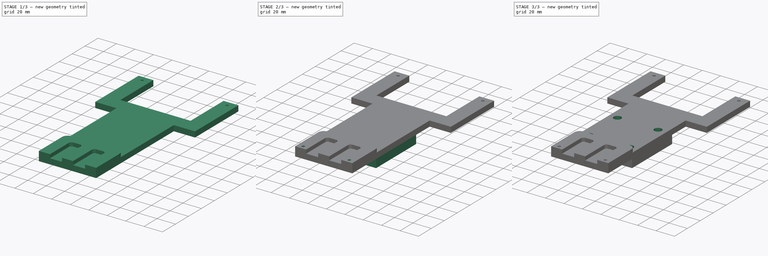
[diagram: build sequence overview — one tinted view per stage of 3, left to right]
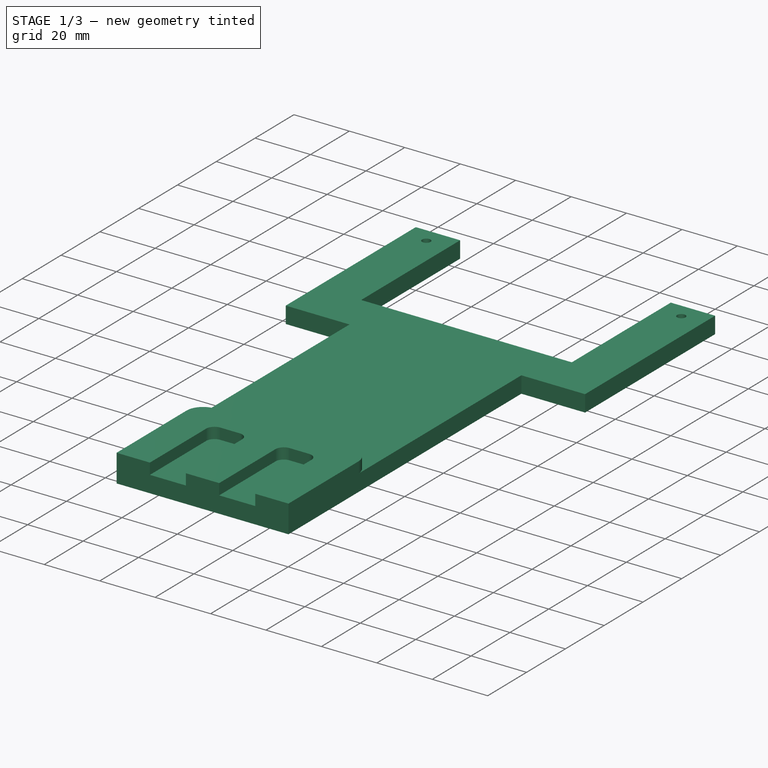
[diagram: stage 1 of 3 — iso view after this stage's code; geometry added in this stage tinted green]
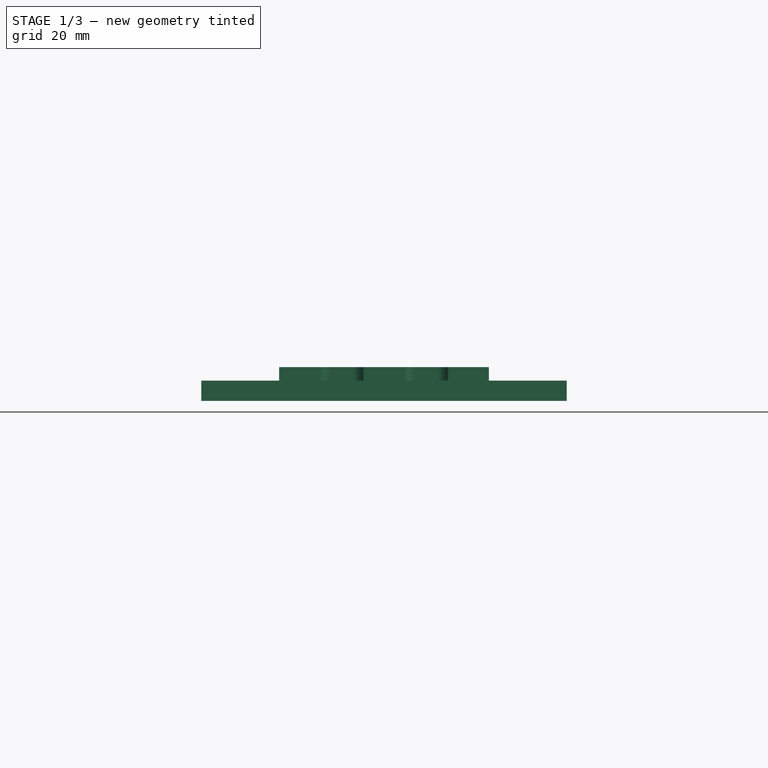
[diagram: stage 1 of 3 — front view after this stage's code; geometry added in this stage tinted green]
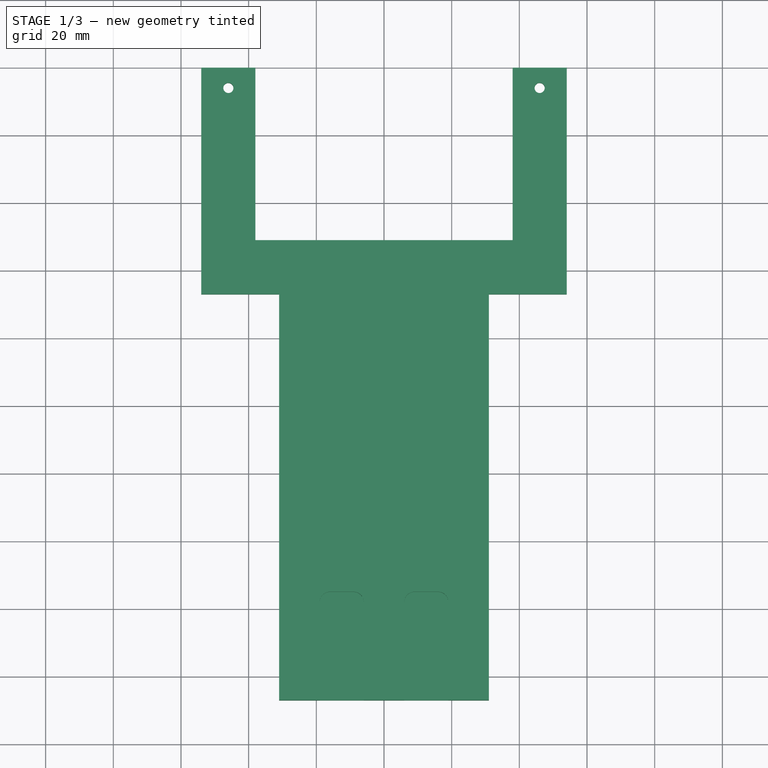
[diagram: stage 1 of 3 — top view after this stage's code; geometry added in this stage tinted green]
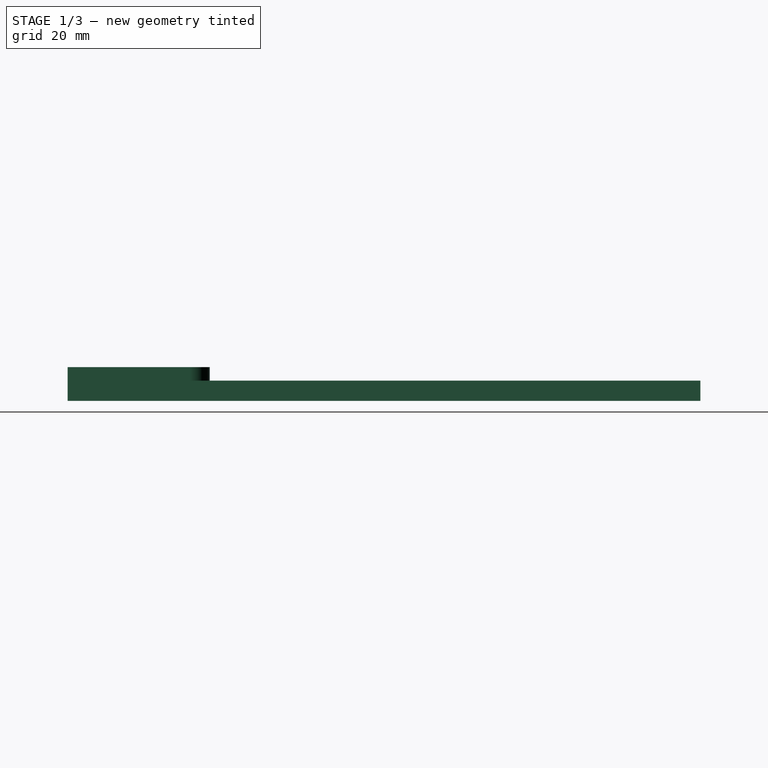
[diagram: stage 1 of 3 — right view after this stage's code; geometry added in this stage tinted green]
FCSTD DOCUMENT  (FreeCAD 0.19R24291 (Git))
Label: NUC
License: All rights reserved
LicenseURL: http://en.wikipedia.org/wiki/All_rights_reserved
objects: Sketcher::SketchObject×6, PartDesign::Pad×3, PartDesign::Pocket×3, PartDesign::Body×1
note: 19 computed .brp shape members not serialized (recipe doc carries the construction recipe); baked Part::Feature solids carry a one-line shape summary decoded from their .brp

FEATURE [Sketcher::SketchObject] Sketch
  FullyConstrained = true
  MapMode = 5
  Support = -> [XY_Plane]
  sketch-geometry (14):
    g0: LineSegment StartX=-38 StartY=29 StartZ=0 EndX=38 EndY=29 EndZ=0
    g1: LineSegment StartX=31 StartY=-107 StartZ=0 EndX=-31 EndY=-107 EndZ=0
    g2: LineSegment StartX=31 StartY=-107 StartZ=0 EndX=31 EndY=13 EndZ=0
    g3: LineSegment StartX=38 StartY=80 StartZ=0 EndX=54 EndY=80 EndZ=0
    g4: LineSegment StartX=-31 StartY=-107 StartZ=0 EndX=-31 EndY=13 EndZ=0
    g5: LineSegment StartX=-38 StartY=80 StartZ=0 EndX=-54 EndY=80 EndZ=0
    g6: Circle CenterX=46 CenterY=74 CenterZ=0 NormalX=0 NormalY=0 NormalZ=1 AngleXU=0 Radius=1.5
    g7: Circle CenterX=-46 CenterY=74 CenterZ=0 NormalX=0 NormalY=0 NormalZ=1 AngleXU=0 Radius=1.5
    g8: LineSegment StartX=-54 StartY=80 StartZ=0 EndX=-54 EndY=13 EndZ=0
    g9: LineSegment StartX=-54 StartY=13 StartZ=0 EndX=-31 EndY=13 EndZ=0
    g10: LineSegment StartX=54 StartY=80 StartZ=0 EndX=54 EndY=13 EndZ=0
    g11: LineSegment StartX=54 StartY=13 StartZ=0 EndX=31 EndY=13 EndZ=0
    g12: LineSegment StartX=38 StartY=80 StartZ=0 EndX=38 EndY=29 EndZ=0
    g13: LineSegment StartX=-38 StartY=80 StartZ=0 EndX=-38 EndY=29 EndZ=0
  constraints (42):
    c: Horizontal(g1)
    c: Coincident(g2,g1)
    c: Vertical(g2)
    c: Horizontal(g3)
    c: Coincident(g4,g1)
    c: Vertical(g4)
    c: Horizontal(g5)
    c: Horizontal(g5,g3)
    c: Horizontal(g2,g4)
    c: Equal(g3,g5)
    c: DistanceY(g1,g3) = 187
    c: Diameter(g6) = 3
    c: Equal(g7,g6)
    c: Horizontal(g7,g6)
    c: DistanceX(g7,g6) = 92
    c: DistanceY(g6,g3) = 6
    c: DistanceX(g3,g6) = 8
    c: DistanceX(g3,g3) = 16
    c: DistanceY(g2,g2) = 120
    c: DistanceX(g1,g1) = 62
    c: DistanceX(g5,g3) = 76
    c: Coincident(g8,g5)
    c: Vertical(g8)
    c: Coincident(g9,g8)
    c: Coincident(g9,g4)
    c: Coincident(g10,g3)
    c: Vertical(g10)
    c: Coincident(g11,g10)
    c: Coincident(g11,g2)
    c: Coincident(g12,g3)
    c: Vertical(g12)
    c: Coincident(g13,g5)
    c: Vertical(g13)
    c: DistanceY(g2,g0) = 16
    c: Horizontal(g11)
    c: Horizontal(g9)
    c: Coincident(g13,g0)
    c: Coincident(g0,g12)
    c: Horizontal(g0)
    c: DistanceY(g1,g-1) = 107
    c: DistanceX(g0,g-1) = 38
    c: DistanceX(g4,g-1) = 31
FEATURE [PartDesign::Pad] Pad
  Direction = (1,1,1)
  Length = 6
  Length2 = 100
  Profile = -> Sketch
  Type = 0
FEATURE [Sketcher::SketchObject] Sketch001
  FullyConstrained = true
  MapMode = 5
  Placement = pos=(0,0,6) rot=(0,0,1;0rad)
  Support = -> [Pad]
  sketch-geometry (18):
    g0: LineSegment StartX=31 StartY=-71 StartZ=0 EndX=31 EndY=-107 EndZ=0
    g1: LineSegment StartX=-31 StartY=-107 StartZ=0 EndX=-31 EndY=-71 EndZ=0
    g2: ArcOfCircle CenterX=-25 CenterY=-71 CenterZ=0 NormalX=0 NormalY=0 NormalZ=1 AngleXU=0 Radius=6 StartAngle=1.5708 EndAngle=3.14159
    g3: ArcOfCircle CenterX=25 CenterY=-71 CenterZ=0 NormalX=0 NormalY=0 NormalZ=1 AngleXU=0 Radius=6 StartAngle=6.28319 EndAngle=7.85398
    g4: LineSegment StartX=-25 StartY=-65 StartZ=0 EndX=25 EndY=-65 EndZ=0
    g5: LineSegment StartX=-31 StartY=-107 StartZ=0 EndX=-19 EndY=-107 EndZ=0
    g6: LineSegment StartX=-19 StartY=-107 StartZ=0 EndX=-19 EndY=-78 EndZ=0
    g7: LineSegment StartX=-16 StartY=-75 StartZ=0 EndX=-9 EndY=-75 EndZ=0
    g8: LineSegment StartX=-6 StartY=-78 StartZ=0 EndX=-6 EndY=-107 EndZ=0
    g9: LineSegment StartX=-6 StartY=-107 StartZ=0 EndX=6 EndY=-107 EndZ=0
    g10: LineSegment StartX=6 StartY=-107 StartZ=0 EndX=6 EndY=-78 EndZ=0
    g11: LineSegment StartX=9 StartY=-75 StartZ=0 EndX=16 EndY=-75 EndZ=0
    g12: LineSegment StartX=19 StartY=-78 StartZ=0 EndX=19 EndY=-107 EndZ=0
    g13: LineSegment StartX=19 StartY=-107 StartZ=0 EndX=31 EndY=-107 EndZ=0
    g14: ArcOfCircle CenterX=9 CenterY=-78 CenterZ=0 NormalX=0 NormalY=0 NormalZ=1 AngleXU=0 Radius=3 StartAngle=1.5708 EndAngle=3.14159
    g15: ArcOfCircle CenterX=16 CenterY=-78 CenterZ=0 NormalX=0 NormalY=0 NormalZ=1 AngleXU=0 Radius=3 StartAngle=1.85151e-07 EndAngle=1.5708
    g16: ArcOfCircle CenterX=-16 CenterY=-78 CenterZ=0 NormalX=0 NormalY=0 NormalZ=1 AngleXU=0 Radius=3 StartAngle=1.5708 EndAngle=3.14159
    g17: ArcOfCircle CenterX=-9 CenterY=-78 CenterZ=0 NormalX=0 NormalY=0 NormalZ=1 AngleXU=0 Radius=3 StartAngle=6.28318 EndAngle=7.85398
  constraints (60):
    c: Vertical(g0)
    c: Vertical(g1)
    c: DistanceY(g1,g-1) = 107
    c: DistanceX(g1,g-1) = 31
    c: DistanceX(g1,g0) = 62
    c: Coincident(g2,g1)
    c: Coincident(g3,g0)
    c: Coincident(g4,g2)
    c: Coincident(g4,g3)
    c: Horizontal(g4)
    c: Tangent(g1,g2)
    c: Tangent(g2,g4)
    c: Tangent(g4,g3)
    c: Tangent(g3,g0)
    c: DistanceY(g1,g2) = 42
    c: Equal(g3,g2)
    c: Coincident(g5,g1)
    c: Horizontal(g5)
    c: Coincident(g6,g5)
    c: Vertical(g6)
    c: Horizontal(g7)
    c: Vertical(g8)
    c: Coincident(g9,g8)
    c: Horizontal(g9)
    c: Coincident(g10,g9)
    c: Vertical(g10)
    c: Vertical(g12)
    c: Coincident(g13,g12)
    c: Coincident(g13,g0)
    c: Horizontal(g13)
    c: Horizontal(g11)
    c: Coincident(g14,g10)
    c: Coincident(g14,g11)
    c: Coincident(g15,g11)
    c: Coincident(g15,g12)
    c: Coincident(g16,g6)
    c: Coincident(g16,g7)
    c: Coincident(g17,g7)
    c: Coincident(g17,g8)
    c: Tangent(g6,g16)
    c: Tangent(g16,g7)
    c: Tangent(g7,g17)
    c: Tangent(g17,g8)
    c: Tangent(g10,g14)
    c: Tangent(g14,g11)
    c: Tangent(g11,g15)
    c: Tangent(g15,g12)
    c: Equal(g16,g17)
    c: Equal(g16,g14)
    c: Equal(g16,g15)
    c: Equal(g8,g6)
    c: Equal(g6,g10)
    c: Equal(g11,g7)
    c: Equal(g5,g13)
    c: Radius(g2) = 6
    c: Radius(g16) = 3
    c: DistanceX(g5,g8) = 13
    c: DistanceX(g5,g5) = 12
    c: DistanceY(g8,g7) = 32
    c: Equal(g1,g0)
FEATURE [PartDesign::Pad] Pad001
  BaseFeature = -> Pad
  Direction = (1,1,1)
  Length = 4
  Length2 = 100
  Profile = -> Sketch001
  Type = 0
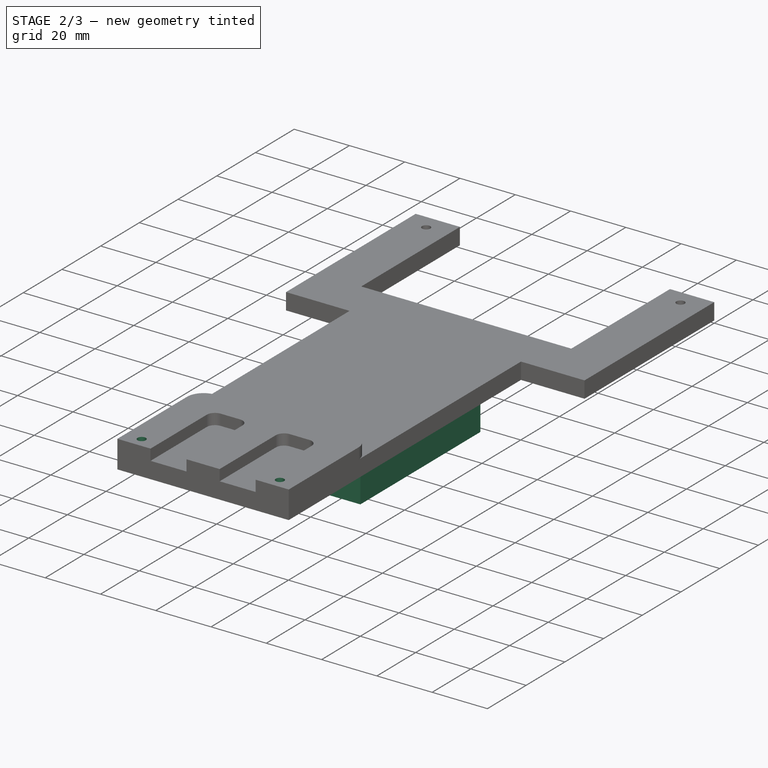
[diagram: stage 2 of 3 — iso view after this stage's code; geometry added in this stage tinted green]
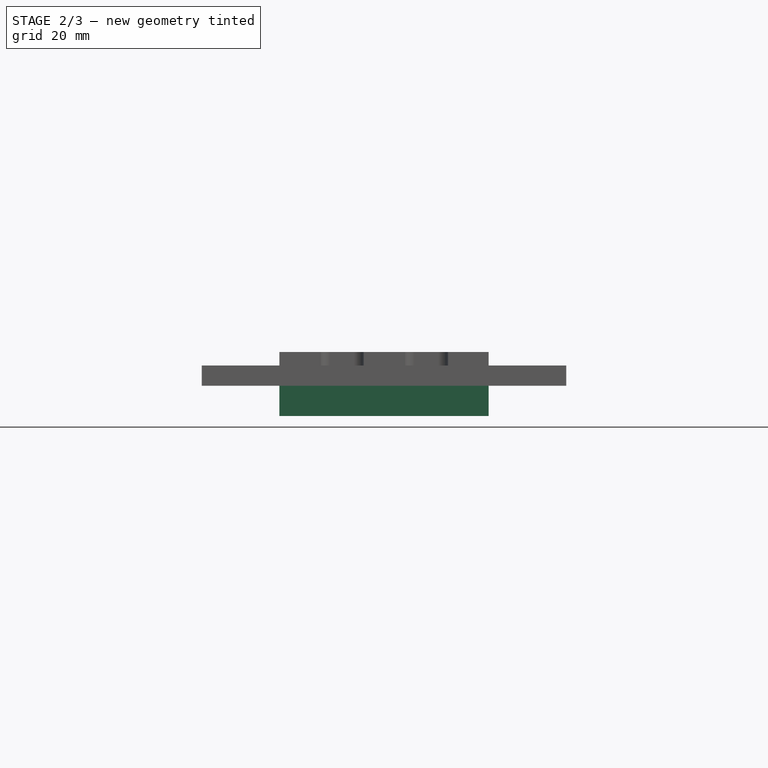
[diagram: stage 2 of 3 — front view after this stage's code; geometry added in this stage tinted green]
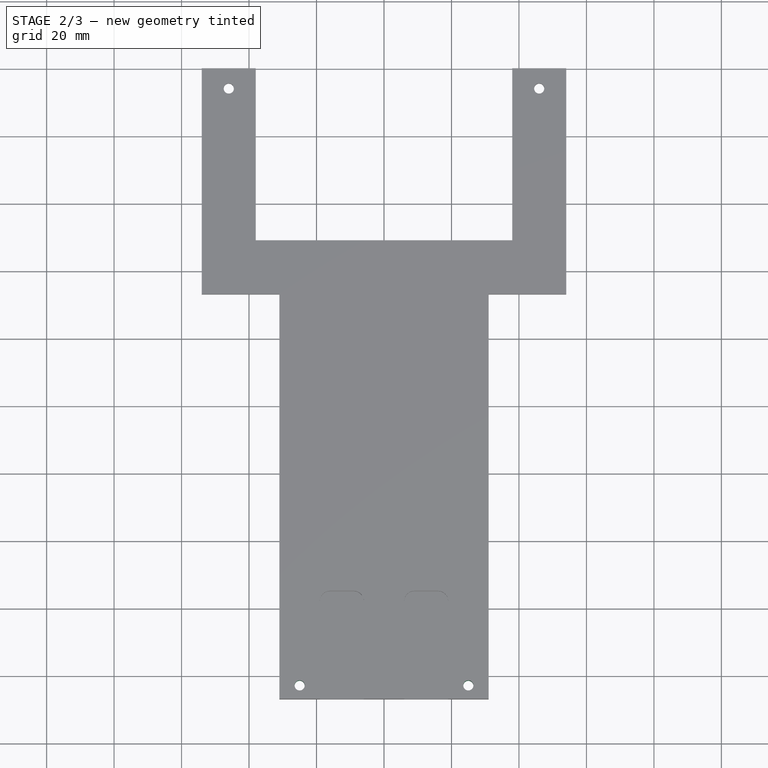
[diagram: stage 2 of 3 — top view after this stage's code; geometry added in this stage tinted green]
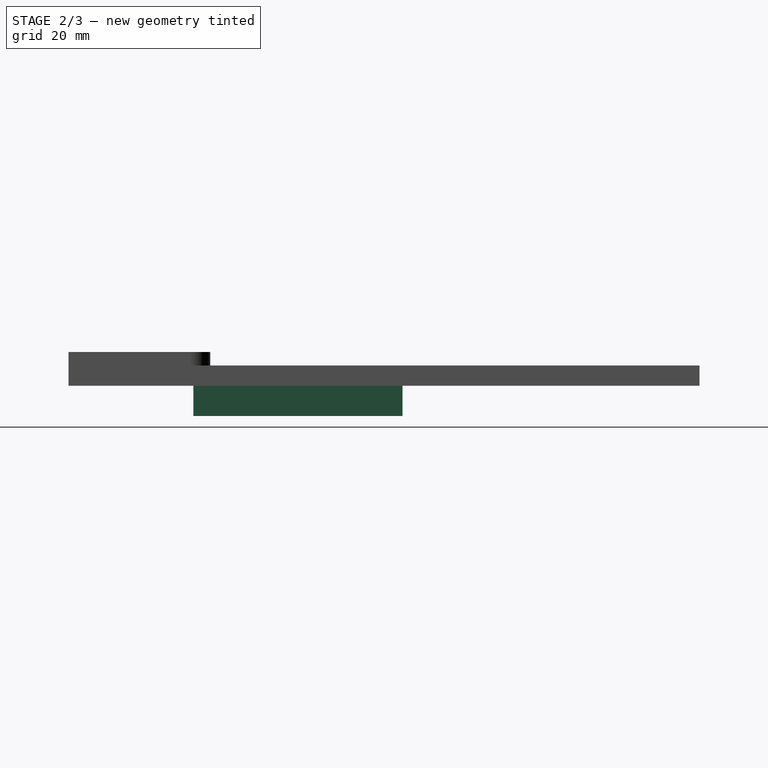
[diagram: stage 2 of 3 — right view after this stage's code; geometry added in this stage tinted green]
FEATURE [Sketcher::SketchObject] Sketch002
  FullyConstrained = true
  MapMode = 5
  Placement = pos=(0,0,10) rot=(0,0,1;0rad)
  Support = -> [Pad001]
  sketch-geometry (4):
    g0: GeomPoint X=-25 Y=-103 Z=0
    g1: GeomPoint X=25 Y=-103 Z=0
    g2: Circle CenterX=-25 CenterY=-103 CenterZ=0 NormalX=0 NormalY=0 NormalZ=1 AngleXU=0 Radius=1.5
    g3: Circle CenterX=25 CenterY=-103 CenterZ=0 NormalX=0 NormalY=0 NormalZ=1 AngleXU=0 Radius=1.5
  constraints (8):
    c: Coincident(g2,g0)
    c: Coincident(g3,g1)
    c: Diameter(g3) = 3
    c: Diameter(g2) = 3
    c: DistanceX(g2,g3) = 50
    c: DistanceX(g2,g-1) = 25
    c: DistanceY(g2,g-1) = 103
    c: Horizontal(g2,g3)
FEATURE [PartDesign::Pocket] Pocket
  BaseFeature = -> Pad001
  Length = 10
  Length2 = 100
  Profile = -> Sketch002
  Type = 0
FEATURE [Sketcher::SketchObject] Sketch003
  FullyConstrained = true
  MapMode = 5
  Placement = pos=(0,0,0) rot=(1,0,0;3.14159rad)
  Support = -> [Pocket]
  sketch-geometry (4):
    g0: LineSegment StartX=-31 StartY=70 StartZ=0 EndX=31 EndY=70 EndZ=0
    g1: LineSegment StartX=31 StartY=70 StartZ=0 EndX=31 EndY=8 EndZ=0
    g2: LineSegment StartX=31 StartY=8 StartZ=0 EndX=-31 EndY=8 EndZ=0
    g3: LineSegment StartX=-31 StartY=8 StartZ=0 EndX=-31 EndY=70 EndZ=0
  constraints (12):
    c: Coincident(g0,g1)
    c: Coincident(g1,g2)
    c: Coincident(g2,g3)
    c: Coincident(g3,g0)
    c: Horizontal(g0)
    c: Horizontal(g2)
    c: Vertical(g1)
    c: Vertical(g3)
    c: DistanceX(g0,g0) = 62
    c: DistanceX(g0,g-1) = 31
    c: DistanceY(g-1,g1) = 8
    c: DistanceY(g1,g1) = 62
FEATURE [PartDesign::Pad] Pad002
  BaseFeature = -> Pocket
  Direction = (1,1,1)
  Length = 9
  Length2 = 100
  Profile = -> Sketch003
  Type = 0
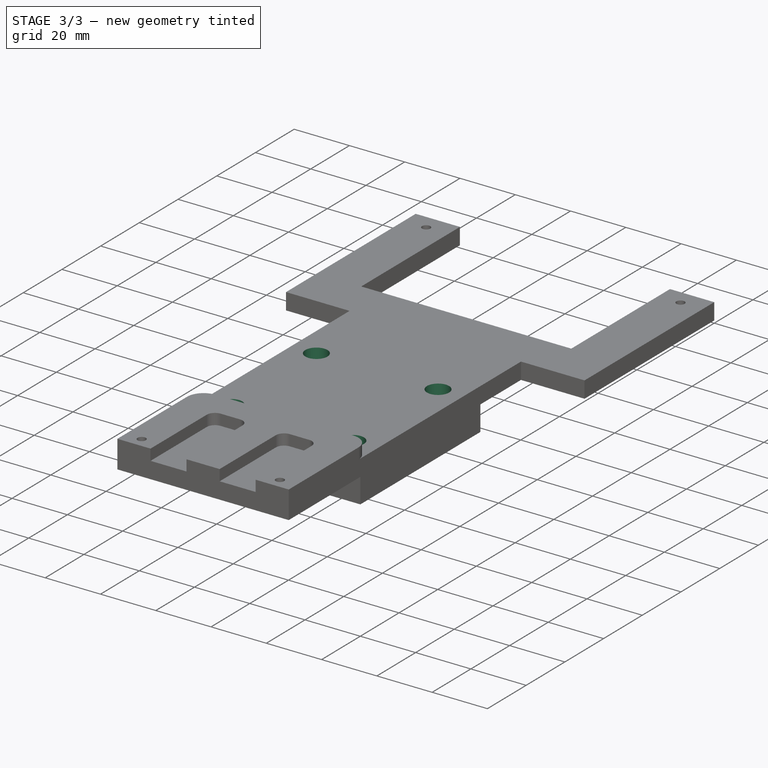
[diagram: stage 3 of 3 — iso view after this stage's code; geometry added in this stage tinted green]
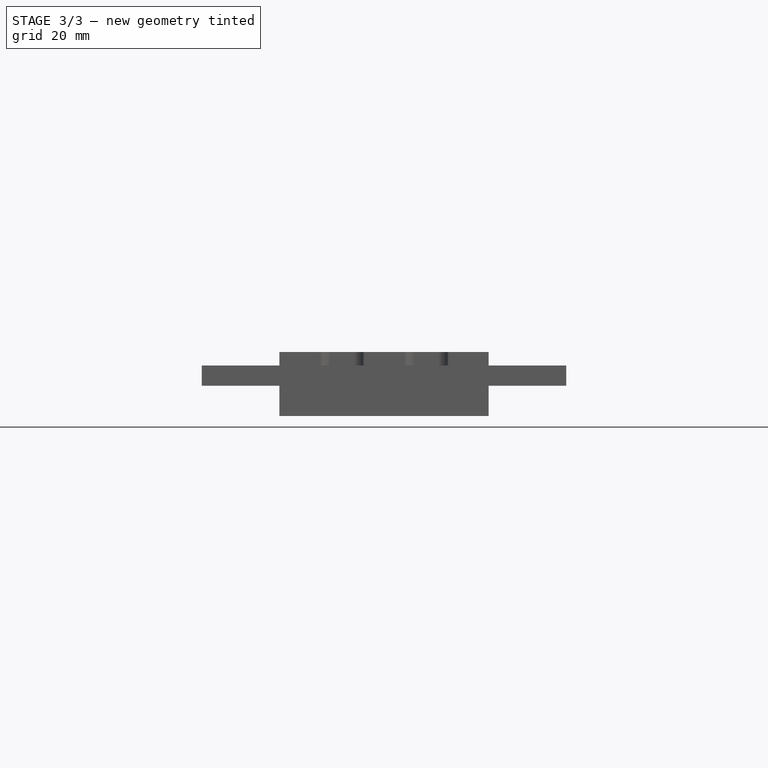
[diagram: stage 3 of 3 — front view after this stage's code; geometry added in this stage tinted green]
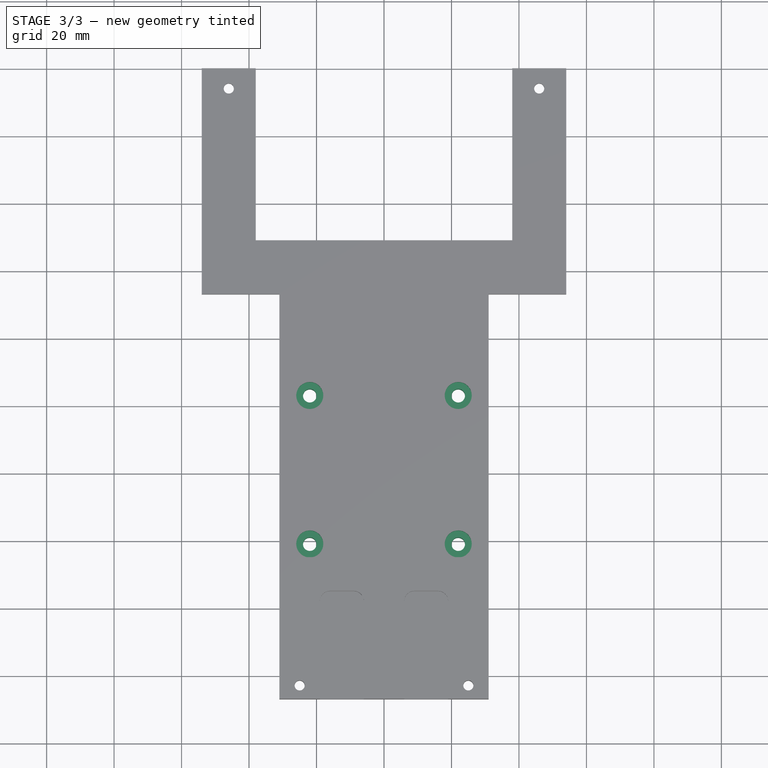
[diagram: stage 3 of 3 — top view after this stage's code; geometry added in this stage tinted green]
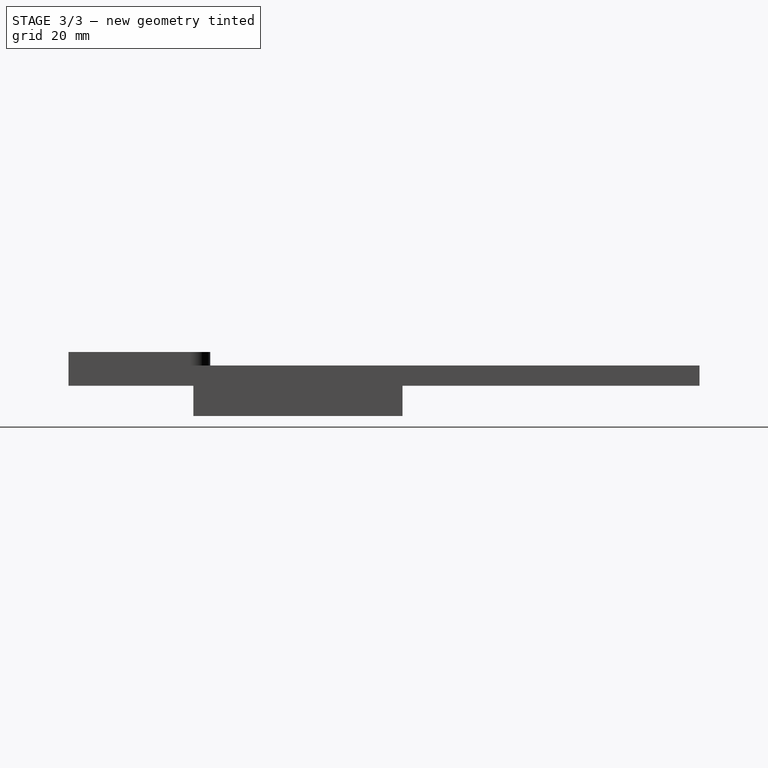
[diagram: stage 3 of 3 — right view after this stage's code; geometry added in this stage tinted green]
FEATURE [Sketcher::SketchObject] Sketch004
  FullyConstrained = true
  MapMode = 5
  Placement = pos=(0,0,-9) rot=(1,0,0;3.14159rad)
  Support = -> [Pad002]
  sketch-geometry (4):
    g0: Circle CenterX=-22 CenterY=61 CenterZ=0 NormalX=0 NormalY=0 NormalZ=1 AngleXU=0 Radius=2
    g1: Circle CenterX=22 CenterY=61 CenterZ=0 NormalX=0 NormalY=0 NormalZ=1 AngleXU=0 Radius=2
    g2: Circle CenterX=22 CenterY=17 CenterZ=0 NormalX=0 NormalY=0 NormalZ=1 AngleXU=0 Radius=2
    g3: Circle CenterX=-22 CenterY=17 CenterZ=0 NormalX=0 NormalY=0 NormalZ=1 AngleXU=0 Radius=2
  constraints (12):
    c: Equal(g0,g1)
    c: Equal(g0,g3)
    c: Equal(g0,g2)
    c: Vertical(g0,g3)
    c: Vertical(g2,g1)
    c: Horizontal(g0,g1)
    c: Horizontal(g3,g2)
    c: Diameter(g0) = 4
    c: DistanceX(g0,g1) = 44
    c: DistanceY(g2,g1) = 44
    c: DistanceX(g0,g-1) = 22
    c: DistanceY(g-1,g2) = 17
FEATURE [PartDesign::Pocket] Pocket001
  BaseFeature = -> Pad002
  Length = 15
  Length2 = 100
  Profile = -> Sketch004
  Type = 0
FEATURE [Sketcher::SketchObject] Sketch005
  FullyConstrained = true
  MapMode = 5
  Placement = pos=(0,0,6) rot=(0,0,1;0rad)
  Support = -> [Pocket001]
  sketch-geometry (4):
    g0: Circle CenterX=-22 CenterY=-61 CenterZ=0 NormalX=0 NormalY=0 NormalZ=1 AngleXU=0 Radius=4
    g1: Circle CenterX=22 CenterY=-61 CenterZ=0 NormalX=0 NormalY=0 NormalZ=1 AngleXU=0 Radius=4
    g2: Circle CenterX=22 CenterY=-17 CenterZ=0 NormalX=0 NormalY=0 NormalZ=1 AngleXU=0 Radius=4
    g3: Circle CenterX=-22 CenterY=-17 CenterZ=0 NormalX=0 NormalY=0 NormalZ=1 AngleXU=0 Radius=4
  constraints (12):
    c: Equal(g3,g2)
    c: Equal(g3,g0)
    c: Equal(g3,g1)
    c: DistanceX(g3,g2) = 44
    c: DistanceX(g3,g-1) = 22
    c: DistanceY(g3,g-1) = 17
    c: DistanceY(g1,g2) = 44
    c: Vertical(g3,g0)
    c: Vertical(g1,g2)
    c: Horizontal(g3,g2)
    c: Horizontal(g0,g1)
    c: Diameter(g3) = 8
FEATURE [PartDesign::Pocket] Pocket002
  BaseFeature = -> Pocket001
  Length = 4
  Length2 = 100
  Profile = -> Sketch005
  Type = 0
FEATURE [PartDesign::Body] Body
  Group = -> [Sketch,Pad,Sketch001,Pad001,Sketch002,Pocket,Sketch003,Pad002,Sketch004,Pocket001,Sketch005,Pocket002]
  Origin = -> Origin
  Tip = -> Pocket002
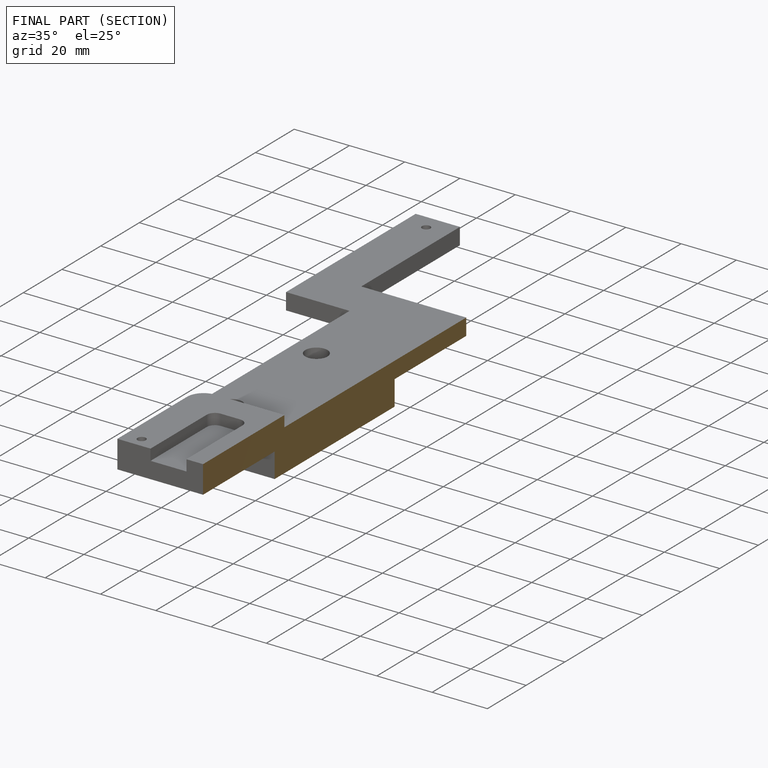
[diagram: finished part — half-section view (interior)]
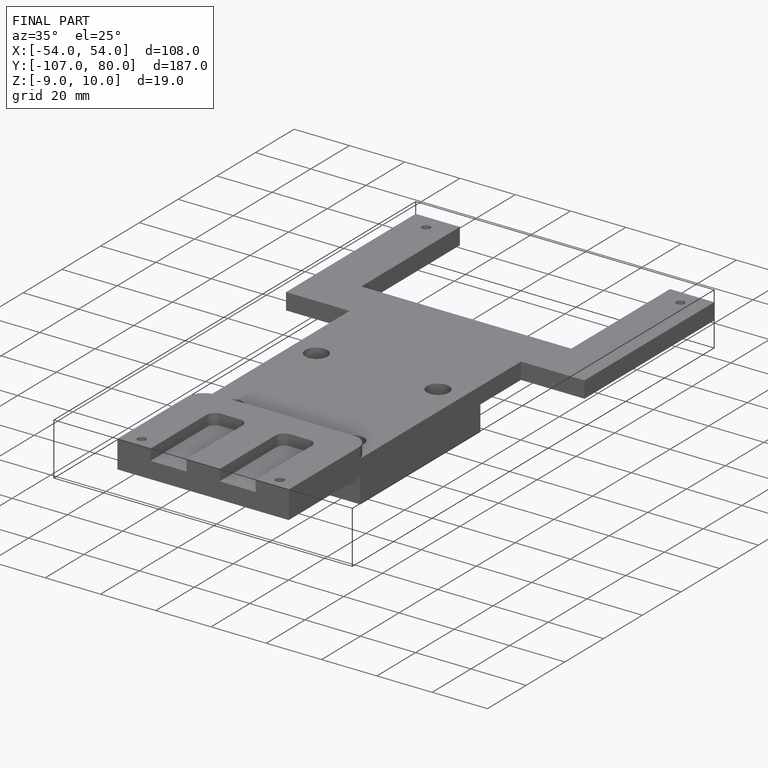
[diagram: finished part — iso view with bounding-box wireframe]
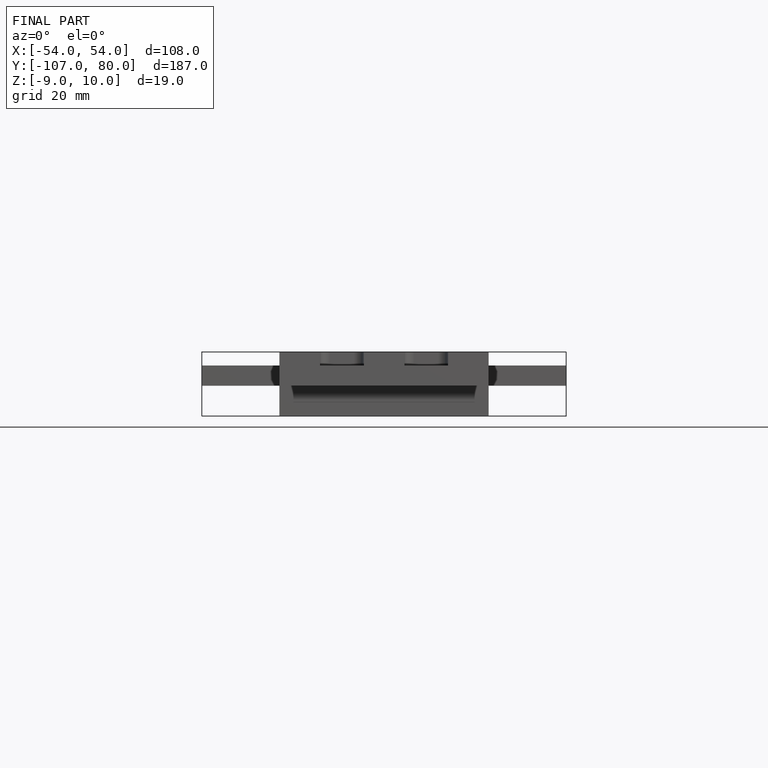
[diagram: finished part — front view with bounding-box wireframe]
